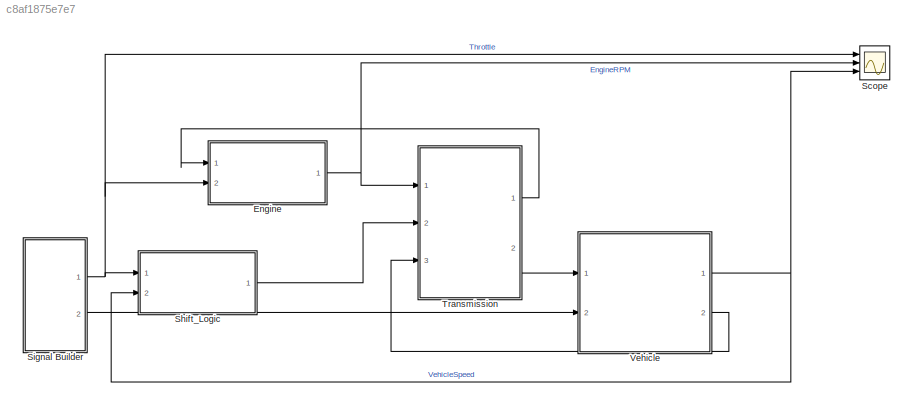
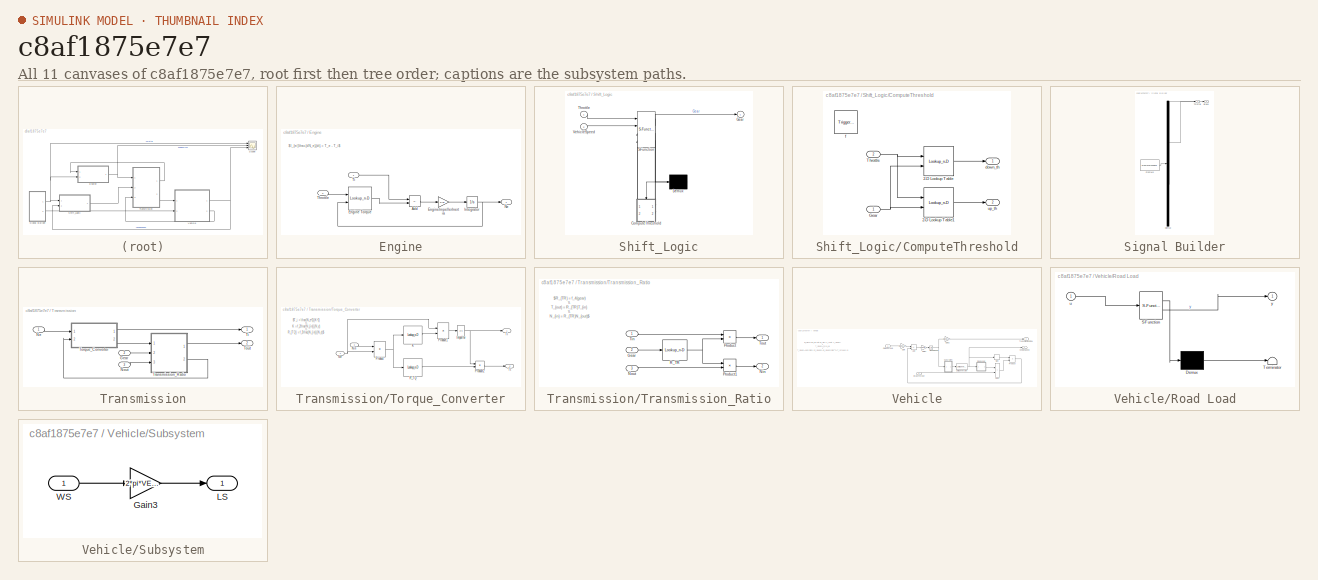
[diagram: thumbnail index - all 11 canvases of the model, root first then tree order]
MODEL slx_c8af1875e7e7
KIND model
CONFIG AbsTol = auto
CONFIG EnableMultiTasking = off
CONFIG FixedStep = 0.005
CONFIG MaxStep = 0.04
CONFIG MinStep = auto
CONFIG PreLoadFcn = initialization
CONFIG RelTol = 1e-3
CONFIG SampleTimeConstraint = Unconstrained
CONFIG SolverName = ode5
CONFIG StartTime = 0.0
CONFIG StopTime = 30
BLOCK [SubSystem] Engine
  Ports = [2, 1]
  RequestExecContextInheritance = off
BLOCK [Sum] Engine/Add
  IconShape = rectangular
  InputSameDT = on
  Inputs = -+
  OutDataTypeStr = Inherit: Same as first input
  Ports = [2, 1]
  SaturateOnIntegerOverflow = on
BLOCK [Lookup_n-D] Engine/Engine Torque
  BreakpointsForDimension1 = TH_VEC
  BreakpointsForDimension2 = NE_VEC
  BreakpointsForDimension3 = [5, 7]
  InputPortMap = u0,u1
  Ports = [2, 1]
  Table = EMAP
BLOCK [Gain] Engine/EngineImpellerInertia
  Gain = 1/Iei
  OutDataTypeStr = Inherit: Same as input
  ParamDataTypeStr = Inherit: Same as input
  SaturateOnIntegerOverflow = on
BLOCK [Integrator] Engine/Integrator
  InitialCondition = 1000
  LimitOutput = on
  LowerSaturationLimit = 600
  Ports = [1, 1]
  UpperSaturationLimit = 6000
  ZeroCross = off
BLOCK [Outport] Engine/Ne
  Unit = rpm
BLOCK [Inport] Engine/Throttle
  Port = 2
  Unit = %
BLOCK [Inport] Engine/Ti
  Unit = ft*lbf@torque
BLOCK [Scope] Scope
  Floating = off
  NumInputPorts = 3
  Ports = [3]
  ScopeSpecificationString = Simulink.scopes.TimeScopeBlockCfg('CurrentConfiguration', extmgr.ConfigurationSet(extmgr.Configuration('Core','General UI',true),extmgr.Configuration('Core','Source UI',true),extmgr.Configuration('Sources','WiredSimulink',true),extmgr.Configuration('Visuals','Time Domain',true,'SerializedDisplays',{struct('MinYLimReal','-5.125','MaxYLimReal','56.125','YLabelReal','','MinYLimMag','0.00000','MaxYLim...<+2824ch>
BLOCK [SubSystem] Shift_Logic
  ErrorFcn = Stateflow.Translate.translate
  NameLocation = top
  PermitHierarchicalResolution = ExplicitOnly
  Ports = [2, 1]
  RequestExecContextInheritance = off
  SFBlockType = Chart
  TreatAsAtomicUnit = on
BLOCK [Demux] Shift_Logic/ Demux 
  Outputs = 1
  Ports = [1, 1]
BLOCK [S-Function] Shift_Logic/ SFunction 
  EnableBusSupport = on
  FunctionName = sf_sfun
  Parameters = TWAIT
  PortCounts = [4 4]
  Ports = [4, 4]
  SFcnIsStateOwnerBlock = off
  SFunctionDeploymentMode = off
  Tag = Stateflow S-Function 3
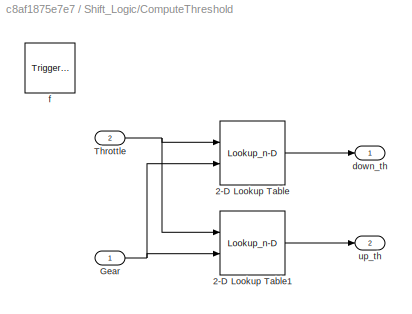
BLOCK [SubSystem] Shift_Logic/ComputeThreshold
  Ports = [2, 2, 0, 1]
  PreDeleteFcn = Stateflow.SLINSF.SimulinkMan.removePreDeleteFcn
  RequestExecContextInheritance = off
  UndoDeleteFcn = Stateflow.SLINSF.SimulinkMan.restorePreDeleteFcn
BLOCK [Lookup_n-D] Shift_Logic/ComputeThreshold/2-D Lookup Table
  BreakpointsForDimension1 = UP_TH_BP
  BreakpointsForDimension2 = [1:4]
  InputPortMap = u0,u1
  InputSameDT = off
  LockScale = on
  OutDataTypeStr = double
  Ports = [2, 1]
  Table = UP_TABLE
BLOCK [Lookup_n-D] Shift_Logic/ComputeThreshold/2-D Lookup Table1
  BreakpointsForDimension1 = DOWN_TH_BP
  BreakpointsForDimension2 = [1:4]
  InputPortMap = u0,u1
  OutDataTypeStr = double
  Ports = [2, 1]
  Table = DOWN_TABLE
BLOCK [Inport] Shift_Logic/ComputeThreshold/Gear
  OutDataTypeStr = double
  PortDimensions = 1
  SignalType = real
  VarSizeSig = No
BLOCK [Inport] Shift_Logic/ComputeThreshold/Throttle
  OutDataTypeStr = double
  Port = 2
  PortDimensions = 1
  SignalType = real
  VarSizeSig = No
BLOCK [Outport] Shift_Logic/ComputeThreshold/down_th
BLOCK [TriggerPort] Shift_Logic/ComputeThreshold/f
  CopyFcn = Stateflow.SLINSF.SimulinkMan.removeBlockPreDeleteFcn
  Ports = []
  PreDeleteFcn = Stateflow.SLINSF.SimulinkMan.unsafePredeleteFcn
  StatesWhenEnabling = held
  TriggerType = function-call
  VariantControl = (inherit)
BLOCK [Outport] Shift_Logic/ComputeThreshold/up_th
  Port = 2
BLOCK [Outport] Shift_Logic/Gear
BLOCK [Inport] Shift_Logic/Throttle
BLOCK [Inport] Shift_Logic/VehicleSpeed
  Port = 2
BLOCK [SubSystem] Signal Builder
  ClipboardFcn = sigbuilder_block('clipboard');
  CloseFcn = sigbuilder_block('close');
  ContinueFcn = sigbuilder_block('continue');
  CopyFcn = sigbuilder_block('copy');
  DeleteFcn = sigbuilder_block('delete');
  LoadFcn = sigbuilder_block('load',[574.2 159.6 550.8 357 ]);
  MaskHideContents = on
  ModelCloseFcn = sigbuilder_block('modelClose');
  NameChangeFcn = sigbuilder_block('namechange');
  OpenFcn = sigbuilder_block('open',[574.2 159.6 550.8 357 ]);
  PauseFcn = sigbuilder_block('pause');
  Ports = [0, 2]
  PreSaveFcn = sigbuilder_block('preSave');
  RequestExecContextInheritance = off
  StartFcn = sigbuilder_block('start');
  StopFcn = sigbuilder_block('stop');
  Tag = STV Subsys
BLOCK [Outport] Signal Builder/Brake
  Port = 2
  Tag = STV Outport
BLOCK [Demux] Signal Builder/Demux
  DisplayOption = none
  Outputs = 2
  Ports = [1, 2]
  Tag = STV Demux
BLOCK [FromWorkspace] Signal Builder/FromWs
  Tag = STV FromWs
  VariableName = tuvar
BLOCK [Outport] Signal Builder/Throttle
  Tag = STV Outport
BLOCK [SubSystem] Transmission
  Ports = [3, 2]
  RequestExecContextInheritance = off
BLOCK [Inport] Transmission/Gear
  Port = 2
  Unit = 1
BLOCK [Inport] Transmission/Ne
  Unit = rpm
BLOCK [Inport] Transmission/Nout
  Port = 3
  Unit = rpm
BLOCK [Outport] Transmission/Ti
  Unit = ft*lbf@torque
BLOCK [SubSystem] Transmission/Torque_Converter
  Ports = [2, 2]
  RequestExecContextInheritance = off
BLOCK [Fcn] Transmission/Torque_Converter/Impeller
  Expr = u^2
BLOCK [Lookup_n-D] Transmission/Torque_Converter/K
  BreakpointsForDimension1 = CONVERTER_DATA(:,1)
  InputPortMap = u0
  NumberOfTableDimensions = 1
  Ports = [1, 1]
  SaturateOnIntegerOverflow = on
  Table = CONVERTER_DATA(:,2)
BLOCK [Inport] Transmission/Torque_Converter/Ne
BLOCK [Inport] Transmission/Torque_Converter/Nin
  Port = 2
BLOCK [Product] Transmission/Torque_Converter/Product
  InputSameDT = on
  Inputs = */
  OutDataTypeStr = Inherit: Same as first input
  Ports = [2, 1]
  SaturateOnIntegerOverflow = on
BLOCK [Product] Transmission/Torque_Converter/Product1
  InputSameDT = on
  Inputs = */
  OutDataTypeStr = Inherit: Same as first input
  Ports = [2, 1]
  SaturateOnIntegerOverflow = on
BLOCK [Product] Transmission/Torque_Converter/Product2
  InputSameDT = on
  OutDataTypeStr = Inherit: Same as first input
  Ports = [2, 1]
  SaturateOnIntegerOverflow = on
BLOCK [Lookup_n-D] Transmission/Torque_Converter/R_TQ
  BreakpointsForDimension1 = CONVERTER_DATA(:,1)
  InputPortMap = u0
  NumberOfTableDimensions = 1
  Ports = [1, 1]
  SaturateOnIntegerOverflow = on
  Table = CONVERTER_DATA(:,3)
BLOCK [Outport] Transmission/Torque_Converter/Ti
BLOCK [Outport] Transmission/Torque_Converter/Tt
  Port = 2
BLOCK [Outport] Transmission/Tout
  Port = 2
  Unit = ft*lbf@torque
BLOCK [SubSystem] Transmission/Transmission_Ratio
  Ports = [3, 2]
  RequestExecContextInheritance = off
BLOCK [Inport] Transmission/Transmission_Ratio/Gear
  Port = 2
  Unit = 1
BLOCK [Outport] Transmission/Transmission_Ratio/Nin
  Port = 2
  Unit = rpm
BLOCK [Inport] Transmission/Transmission_Ratio/Nout
  Port = 3
  Unit = rpm
BLOCK [Product] Transmission/Transmission_Ratio/Product
  InputSameDT = on
  OutDataTypeStr = Inherit: Same as first input
  Ports = [2, 1]
  SaturateOnIntegerOverflow = on
BLOCK [Product] Transmission/Transmission_Ratio/Product1
  InputSameDT = on
  OutDataTypeStr = Inherit: Same as first input
  Ports = [2, 1]
  SaturateOnIntegerOverflow = on
BLOCK [Lookup_n-D] Transmission/Transmission_Ratio/R_TR
  BreakpointsForDimension1 = [1 2 3 4]
  InputPortMap = u0
  LockScale = on
  NumberOfTableDimensions = 1
  OutDataTypeStr = double
  Ports = [1, 1]
  SaturateOnIntegerOverflow = on
  Table = [2.393 1.450 1.000 0.677]
BLOCK [Inport] Transmission/Transmission_Ratio/Tin
  Unit = ft*lbf@torque
BLOCK [Outport] Transmission/Transmission_Ratio/Tout
  Unit = ft*lbf@torque
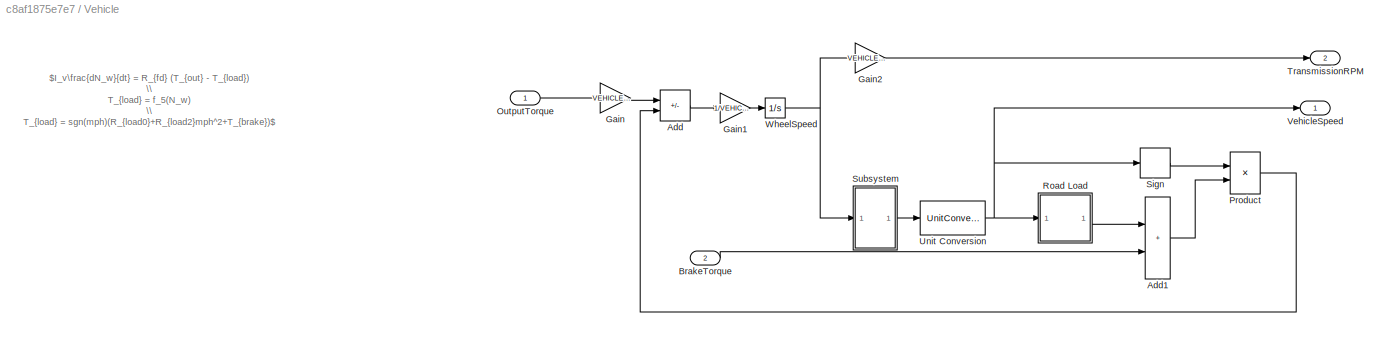
BLOCK [SubSystem] Vehicle
  NameLocation = top
  Ports = [2, 2]
  RequestExecContextInheritance = off
BLOCK [Sum] Vehicle/Add
  IconShape = rectangular
  InputSameDT = on
  Inputs = +-
  OutDataTypeStr = Inherit: Same as first input
  Ports = [2, 1]
  SaturateOnIntegerOverflow = on
BLOCK [Sum] Vehicle/Add1
  IconShape = rectangular
  InputSameDT = on
  OutDataTypeStr = Inherit: Same as first input
  Ports = [2, 1]
  SaturateOnIntegerOverflow = on
BLOCK [Inport] Vehicle/BrakeTorque
  Port = 2
BLOCK [Gain] Vehicle/Gain
  Gain = VEHICLE_DATA(1)
  OutDataTypeStr = Inherit: Same as input
  ParamDataTypeStr = Inherit: Same as input
  SaturateOnIntegerOverflow = on
BLOCK [Gain] Vehicle/Gain1
  Gain = 1/VEHICLE_DATA(5)
  OutDataTypeStr = Inherit: Same as input
  SaturateOnIntegerOverflow = on
BLOCK [Gain] Vehicle/Gain2
  Gain = VEHICLE_DATA(1)
  OutDataTypeStr = Inherit: Same as input
  ParamDataTypeStr = Inherit: Same as input
  SaturateOnIntegerOverflow = on
BLOCK [Inport] Vehicle/OutputTorque 
  Unit = ft*lbf@torque
BLOCK [Product] Vehicle/Product
  InputSameDT = on
  OutDataTypeStr = Inherit: Same as first input
  Ports = [2, 1]
  SaturateOnIntegerOverflow = on
BLOCK [SubSystem] Vehicle/Road Load
  ErrorFcn = Stateflow.Translate.translate
  PermitHierarchicalResolution = ExplicitOnly
  Ports = [1, 1]
  RequestExecContextInheritance = off
  SFBlockType = MATLAB Function
  TreatAsAtomicUnit = on
BLOCK [Demux] Vehicle/Road Load/ Demux 
  Outputs = 1
  Ports = [1, 1]
BLOCK [S-Function] Vehicle/Road Load/ SFunction 
  EnableBusSupport = on
  FunctionName = sf_sfun
  PortCounts = [1 2]
  Ports = [1, 2]
  SFcnIsStateOwnerBlock = off
  SFunctionDeploymentMode = off
  Tag = Stateflow S-Function 2
BLOCK [Terminator] Vehicle/Road Load/ Terminator 
BLOCK [Inport] Vehicle/Road Load/u
BLOCK [Outport] Vehicle/Road Load/y
BLOCK [Signum] Vehicle/Sign
  ZeroCross = off
BLOCK [SubSystem] Vehicle/Subsystem
  Ports = [1, 1]
  RequestExecContextInheritance = off
BLOCK [Gain] Vehicle/Subsystem/Gain3
  Gain = 2*pi*VEHICLE_DATA(4)
  OutDataTypeStr = Inherit: Same as input
  ParamDataTypeStr = Inherit: Same as input
  SaturateOnIntegerOverflow = on
BLOCK [Outport] Vehicle/Subsystem/LS
  Unit = ft/min
BLOCK [Inport] Vehicle/Subsystem/WS
  Unit = rpm
BLOCK [Outport] Vehicle/TransmissionRPM
  Port = 2
  Unit = rpm
BLOCK [UnitConversion] Vehicle/Unit Conversion
BLOCK [Outport] Vehicle/VehicleSpeed
  Unit = mph
BLOCK [Integrator] Vehicle/WheelSpeed
  InitialCondition = (VEHICLE_DATA(6)/VEHICLE_DATA(4)*VEHICLE_DATA(1))/VEHICLE_DATA(1)
  Ports = [1, 1]
  ZeroCross = off
ANNOTATION Engine: $I_{ei}\frac{dN_e}{dt} = T_e - T_i$
ANNOTATION Transmission/Torque_Converter: $T_i = \frac{N_e^2}{K^2} \\ K = f_2\frac{N_{in}}{N_e} \\ R_{TQ} = f_3\frac{N_{in}}{N_e}$
ANNOTATION Transmission/Transmission_Ratio: $R_{TR} = f_4(gear) \\ T_{out} = R_{TR}T_{in} \\ N_{in} = R_{TR}N_{out}$
ANNOTATION Vehicle: $I_v\frac{dN_w}{dt} = R_{fd} (T_{out} - T_{load}) \\ T_{load} = f_5(N_w) \\ T_{load} = sgn(mph)(R_{load0}+R_{load2}mph^2+T_{brake})$
LINE Engine/Add:1 -> Engine/EngineImpellerInertia:1
LINE Engine/Engine Torque:1 -> Engine/Add:2
LINE Engine/EngineImpellerInertia:1 -> Engine/Integrator:1
NET Engine/Integrator:1 -> Engine/Engine Torque:2, Engine/Ne:1
LINE Engine/Throttle:1 -> Engine/Engine Torque:1
LINE Engine/Ti:1 -> Engine/Add:1
NET Engine:1 -> Scope:2, Transmission:1
LINE Shift_Logic:1 -> Transmission:2
NET Signal Builder:1 -> Engine:2, Scope:1, Shift_Logic:1
LINE Signal Builder:2 -> Vehicle:2
LINE Transmission/Gear:1 -> Transmission/Transmission_Ratio:2
LINE Transmission/Ne:1 -> Transmission/Torque_Converter:1
LINE Transmission/Nout:1 -> Transmission/Transmission_Ratio:3
NET Transmission/Torque_Converter/Impeller:1 -> Transmission/Torque_Converter/Product2:1, Transmission/Torque_Converter/Ti:1
LINE Transmission/Torque_Converter/K:1 -> Transmission/Torque_Converter/Product1:2
NET Transmission/Torque_Converter/Ne:1 -> Transmission/Torque_Converter/Product1:1, Transmission/Torque_Converter/Product:2
LINE Transmission/Torque_Converter/Nin:1 -> Transmission/Torque_Converter/Product:1
LINE Transmission/Torque_Converter/Product1:1 -> Transmission/Torque_Converter/Impeller:1
LINE Transmission/Torque_Converter/Product2:1 -> Transmission/Torque_Converter/Tt:1
NET Transmission/Torque_Converter/Product:1 -> Transmission/Torque_Converter/K:1, Transmission/Torque_Converter/R_TQ:1
LINE Transmission/Torque_Converter/R_TQ:1 -> Transmission/Torque_Converter/Product2:2
LINE Transmission/Torque_Converter:1 -> Transmission/Ti:1
LINE Transmission/Torque_Converter:2 -> Transmission/Transmission_Ratio:1
LINE Transmission/Transmission_Ratio/Gear:1 -> Transmission/Transmission_Ratio/R_TR:1
LINE Transmission/Transmission_Ratio/Nout:1 -> Transmission/Transmission_Ratio/Product1:2
LINE Transmission/Transmission_Ratio/Product1:1 -> Transmission/Transmission_Ratio/Nin:1
LINE Transmission/Transmission_Ratio/Product:1 -> Transmission/Transmission_Ratio/Tout:1
NET Transmission/Transmission_Ratio/R_TR:1 -> Transmission/Transmission_Ratio/Product1:1, Transmission/Transmission_Ratio/Product:2
LINE Transmission/Transmission_Ratio/Tin:1 -> Transmission/Transmission_Ratio/Product:1
LINE Transmission/Transmission_Ratio:1 -> Transmission/Tout:1
LINE Transmission/Transmission_Ratio:2 -> Transmission/Torque_Converter:2
LINE Transmission:1 -> Engine:1
LINE Transmission:2 -> Vehicle:1
LINE Vehicle/Add1:1 -> Vehicle/Product:2
LINE Vehicle/Add:1 -> Vehicle/Gain1:1
LINE Vehicle/BrakeTorque:1 -> Vehicle/Add1:2
LINE Vehicle/Gain1:1 -> Vehicle/WheelSpeed:1
LINE Vehicle/Gain2:1 -> Vehicle/TransmissionRPM:1
LINE Vehicle/Gain:1 -> Vehicle/Add:1
LINE Vehicle/OutputTorque :1 -> Vehicle/Gain:1
LINE Vehicle/Product:1 -> Vehicle/Add:2
LINE Vehicle/Road Load:1 -> Vehicle/Add1:1
LINE Vehicle/Sign:1 -> Vehicle/Product:1
LINE Vehicle/Subsystem/Gain3:1 -> Vehicle/Subsystem/LS:1
LINE Vehicle/Subsystem/WS:1 -> Vehicle/Subsystem/Gain3:1
LINE Vehicle/Subsystem:1 -> Vehicle/Unit Conversion:1
NET Vehicle/Unit Conversion:1 -> Vehicle/Road Load:1, Vehicle/Sign:1, Vehicle/VehicleSpeed:1
NET Vehicle/WheelSpeed:1 -> Vehicle/Gain2:1, Vehicle/Subsystem:1
NET Vehicle:1 -> Scope:3, Shift_Logic:2
LINE Vehicle:2 -> Transmission:3
note: NET lines group one-source signal fan-out (src -> all destinations, sorted); 1:1 wires keep LINE
CHART Vehicle/Road Load states=1 transitions=1
  STATE_LABEL 'eML_blk_kernel()'
  STATE_LABEL 'SCRIPT:\nfunction y = fcn(u)\nrload0 = 40;\nrload2 = 0.0200;\n\ny = rload0+(rload2*u*u);\nend'
CHART Shift_Logic states=10 transitions=14
  STATE_LABEL 'GearState'
  STATE_LABEL 'first\nentry:\nGear = 1;'
  STATE_LABEL 'second\nentry:\nGear = 2;'
  STATE_LABEL 'third\nentry:\nGear = 3;'
  STATE_LABEL 'fourth\nentry:\nGear = 4;'
  STATE_LABEL 'UP'
  STATE_LABEL 'UP'
  STATE_LABEL 'UP'
  STATE_LABEL 'DOWN'
  STATE_LABEL 'DOWN'
  STATE_LABEL 'DOWN'
  STATE_LABEL 'first\nentry:\nGear = 1;'
  STATE_LABEL 'second\nentry:\nGear = 2;'
  STATE_LABEL 'third\nentry:\nGear = 3;'
  STATE_LABEL 'fourth\nentry:\nGear = 4;'
  STATE_LABEL 'SelectionAction\nduring:\n[down_th,up_th] = ComputeThreshold(Gear,Throttle);\n'
  STATE_LABEL 'steady_state'
  STATE_LABEL 'down_shift'
  STATE_LABEL 'up_shift'
  STATE_LABEL '[VehicleSpeed>up_th]'
  STATE_LABEL '[VehicleSpeed<down_th]'
  STATE_LABEL 'after(TWAIT,tick)\n[VehicleSpeed<=down_th]\n{GearState.DOWN}'
  STATE_LABEL '[VehicleSpeed>down_th]'
  STATE_LABEL 'after(TWAIT,tick)\n[VehicleSpeed>=up_th]\n{GearState.UP}'
  STATE_LABEL '[VehicleSpeed<up_th]'
  STATE_LABEL 'steady_state'
  STATE_LABEL 'down_shift'
  STATE_LABEL 'up_shift'
  STATE_LABEL '[down_th,up_th] = ComputeThreshold(Gear,Throttle)'
CHART  states=0 transitions=0
CHART  states=0 transitions=0
